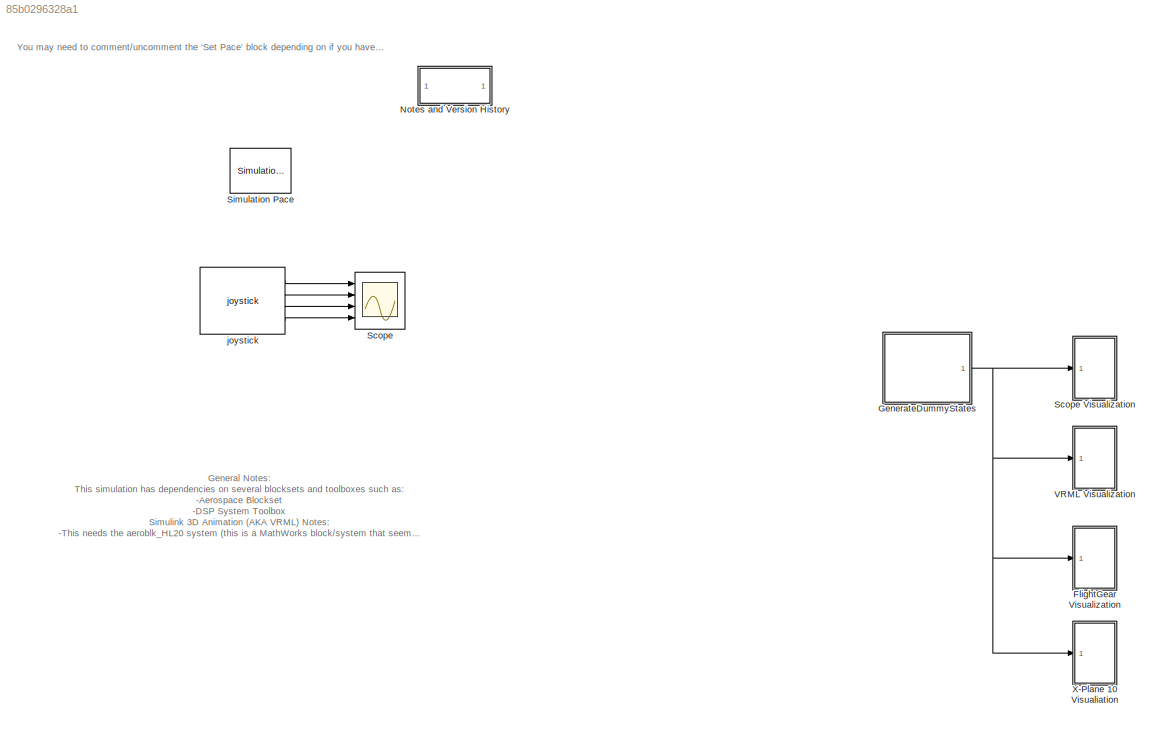
MODEL slx_85b0296328a1
KIND model
CONFIG AbsTol = auto
CONFIG EnableMultiTasking = on
CONFIG FixedStep = auto
CONFIG MaxStep = auto
CONFIG MinStep = auto
CONFIG RelTol = 1e-3
CONFIG SampleTimeConstraint = Unconstrained
CONFIG SolverName = ode45
CONFIG StartTime = 0.0
CONFIG StopTime = simulation.t_final
BLOCK [SubSystem] FlightGear Visualization
  Ports = [1]
  RequestExecContextInheritance = off
BLOCK [Demux] FlightGear Visualization/Demux1
  Outputs = 3
  Ports = [1, 3]
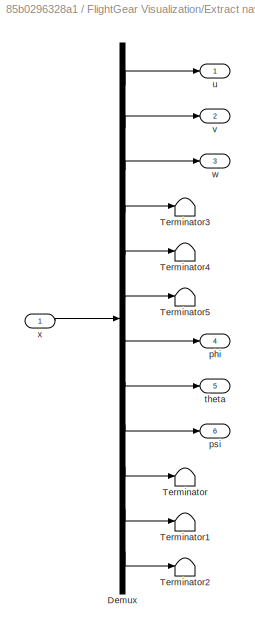
BLOCK [SubSystem] FlightGear Visualization/Extract navigation equation states
  Ports = [1, 6]
  RequestExecContextInheritance = off
BLOCK [Demux] FlightGear Visualization/Extract navigation equation states/Demux
  Outputs = 12
  Ports = [1, 12]
BLOCK [Terminator] FlightGear Visualization/Extract navigation equation states/Terminator
BLOCK [Terminator] FlightGear Visualization/Extract navigation equation states/Terminator1
BLOCK [Terminator] FlightGear Visualization/Extract navigation equation states/Terminator2
BLOCK [Terminator] FlightGear Visualization/Extract navigation equation states/Terminator3
BLOCK [Terminator] FlightGear Visualization/Extract navigation equation states/Terminator4
BLOCK [Terminator] FlightGear Visualization/Extract navigation equation states/Terminator5
BLOCK [Outport] FlightGear Visualization/Extract navigation equation states/phi
  Port = 4
  VectorParamsAs1DForOutWhenUnconnected = off
BLOCK [Outport] FlightGear Visualization/Extract navigation equation states/psi
  Port = 6
  VectorParamsAs1DForOutWhenUnconnected = off
BLOCK [Outport] FlightGear Visualization/Extract navigation equation states/theta
  Port = 5
  VectorParamsAs1DForOutWhenUnconnected = off
BLOCK [Outport] FlightGear Visualization/Extract navigation equation states/u
  VectorParamsAs1DForOutWhenUnconnected = off
BLOCK [Outport] FlightGear Visualization/Extract navigation equation states/v
  Port = 2
  VectorParamsAs1DForOutWhenUnconnected = off
BLOCK [Outport] FlightGear Visualization/Extract navigation equation states/w
  Port = 3
  VectorParamsAs1DForOutWhenUnconnected = off
BLOCK [Inport] FlightGear Visualization/Extract navigation equation states/x
BLOCK [Reference] FlightGear Visualization/FlightGear Preconfigured 6DoF Animation  REF=aerolibfltsims/FlightGear
Preconfigured
6DoF Animation
  AttributesFormatString = Version Selected: %<xFlightGearVersion>
  Ports = [1]
  SourceBlock = aerolibfltsims/FlightGear\nPreconfigured\n6DoF Animation
  SourceProductBaseCode = AE
  SourceType = FlightGearQuick6DoFAnimation
BLOCK [Gain] FlightGear Visualization/Gain1
  Gain = 180/pi
BLOCK [Gain] FlightGear Visualization/Gain2
  Gain = 180/pi
BLOCK [Reference] FlightGear Visualization/Generate Run Script  REF=aerolibfltsims/Generate
Run Script
  Ports = []
  SourceBlock = aerolibfltsims/Generate\nRun Script
  SourceProductBaseCode = AE
  SourceType = Generate FlightGear Run Script
BLOCK [Reference] FlightGear Visualization/Geodetic Position  REF=LumAerospaceBlockset_EquationsOfMotion/Geodetic Position
  Ports = [3, 1]
  SourceBlock = LumAerospaceBlockset_EquationsOfMotion/Geodetic Position
BLOCK [Mux] FlightGear Visualization/Mux3
  DisplayOption = bar
  Inputs = 6
  Ports = [6, 1]
BLOCK [Reference] FlightGear Visualization/Navigation Equations  REF=LumAerospaceBlockset_EquationsOfMotion/Navigation Equations
  Description = Version History  \n                 \n05/24/05: Created
  Ports = [6, 3]
  SourceBlock = LumAerospaceBlockset_EquationsOfMotion/Navigation Equations
BLOCK [Inport] FlightGear Visualization/x
BLOCK [SubSystem] GenerateDummyStates
  Ports = [0, 1]
  RequestExecContextInheritance = off
BLOCK [Clock] GenerateDummyStates/Clock
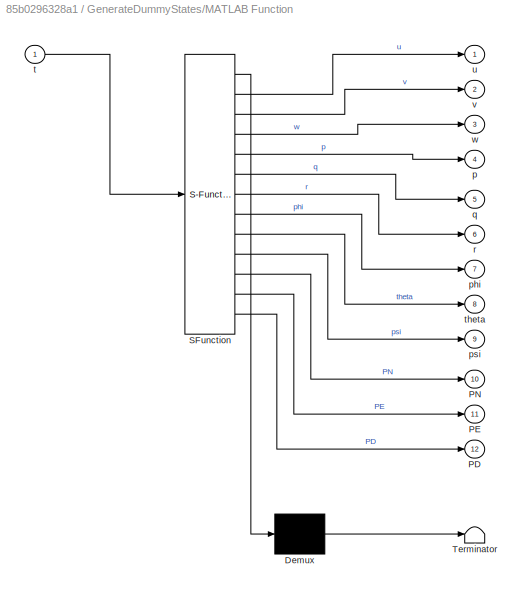
BLOCK [SubSystem] GenerateDummyStates/MATLAB Function
  ErrorFcn = Stateflow.Translate.translate
  PermitHierarchicalResolution = ExplicitOnly
  Ports = [1, 12]
  RequestExecContextInheritance = off
  SFBlockType = MATLAB Function
  TreatAsAtomicUnit = on
BLOCK [Demux] GenerateDummyStates/MATLAB Function/ Demux 
  Outputs = 1
  Ports = [1, 1]
BLOCK [S-Function] GenerateDummyStates/MATLAB Function/ SFunction 
  EnableBusSupport = on
  FunctionName = sf_sfun
  PortCounts = [1 13]
  Ports = [1, 13]
  SFcnIsStateOwnerBlock = off
  SFunctionDeploymentMode = off
  Tag = Stateflow S-Function 2
BLOCK [Terminator] GenerateDummyStates/MATLAB Function/ Terminator 
BLOCK [Outport] GenerateDummyStates/MATLAB Function/PD
  Port = 12
BLOCK [Outport] GenerateDummyStates/MATLAB Function/PE
  Port = 11
BLOCK [Outport] GenerateDummyStates/MATLAB Function/PN
  Port = 10
BLOCK [Outport] GenerateDummyStates/MATLAB Function/p
  Port = 4
BLOCK [Outport] GenerateDummyStates/MATLAB Function/phi
  Port = 7
BLOCK [Outport] GenerateDummyStates/MATLAB Function/psi
  Port = 9
BLOCK [Outport] GenerateDummyStates/MATLAB Function/q
  Port = 5
BLOCK [Outport] GenerateDummyStates/MATLAB Function/r
  Port = 6
BLOCK [Inport] GenerateDummyStates/MATLAB Function/t
BLOCK [Outport] GenerateDummyStates/MATLAB Function/theta
  Port = 8
BLOCK [Outport] GenerateDummyStates/MATLAB Function/u
BLOCK [Outport] GenerateDummyStates/MATLAB Function/v
  Port = 2
BLOCK [Outport] GenerateDummyStates/MATLAB Function/w
  Port = 3
BLOCK [Mux] GenerateDummyStates/Mux
  DisplayOption = bar
  Inputs = 12
  Ports = [12, 1]
BLOCK [Outport] GenerateDummyStates/x
BLOCK [SubSystem] Notes and Version History
  Ports = []
  RequestExecContextInheritance = off
BLOCK [Scope] Scope
  Floating = off
  NumInputPorts = 4
  Ports = [4]
  ScopeSpecificationString = Simulink.scopes.TimeScopeBlockCfg('CurrentConfiguration', extmgr.ConfigurationSet(extmgr.Configuration('Core','General UI',true),extmgr.Configuration('Core','Source UI',true),extmgr.Configuration('Sources','WiredSimulink',true),extmgr.Configuration('Visuals','Time Domain',true,'SerializedDisplays',{struct('MinYLimReal','-10','MaxYLimReal','10','YLabelReal','','MinYLimMag','0','MaxYLimMag','10','Le...<+3509ch>
BLOCK [SubSystem] Scope Visualization
  Ports = [1]
  RequestExecContextInheritance = off
BLOCK [Demux] Scope Visualization/Demux
  Outputs = 12
  Ports = [1, 12]
BLOCK [Scope] Scope Visualization/Scope
  Floating = off
  NumInputPorts = 12
  Ports = [12]
  ScopeSpecificationString = Simulink.scopes.TimeScopeBlockCfg('CurrentConfiguration', extmgr.ConfigurationSet(extmgr.Configuration('Core','General UI',true),extmgr.Configuration('Core','Source UI',true),extmgr.Configuration('Sources','WiredSimulink',true),extmgr.Configuration('Visuals','Time Domain',true,'SerializedDisplays',{struct('MinYLimReal','82.62042','MaxYLimReal','106.32118','YLabelReal','','MinYLimMag','82.62042','M...<+8864ch>
BLOCK [Inport] Scope Visualization/x
BLOCK [Reference] Simulation Pace  REF=aerolibanimutils/Simulation Pace
  AttributesFormatString = %<SleepMode>\n%<SimulationPace> sec/sec
  Commented = on
  Ports = []
  SourceBlock = aerolibanimutils/Simulation Pace
  SourceProductBaseCode = AE
  SourceType = Simulation Pace
BLOCK [SubSystem] VRML Visualization
  Ports = [1]
  RequestExecContextInheritance = off
BLOCK [SubSystem] VRML Visualization/Extract visualization states
  Ports = [1, 6]
  RequestExecContextInheritance = off
BLOCK [Demux] VRML Visualization/Extract visualization states/Demux
  Outputs = 12
  Ports = [1, 12]
BLOCK [Outport] VRML Visualization/Extract visualization states/PD
  Port = 6
  VectorParamsAs1DForOutWhenUnconnected = off
BLOCK [Outport] VRML Visualization/Extract visualization states/PE
  Port = 5
  VectorParamsAs1DForOutWhenUnconnected = off
BLOCK [Outport] VRML Visualization/Extract visualization states/PN
  Port = 4
  VectorParamsAs1DForOutWhenUnconnected = off
BLOCK [Terminator] VRML Visualization/Extract visualization states/Terminator
BLOCK [Terminator] VRML Visualization/Extract visualization states/Terminator1
BLOCK [Terminator] VRML Visualization/Extract visualization states/Terminator2
BLOCK [Terminator] VRML Visualization/Extract visualization states/Terminator3
BLOCK [Terminator] VRML Visualization/Extract visualization states/Terminator4
BLOCK [Terminator] VRML Visualization/Extract visualization states/Terminator5
BLOCK [Outport] VRML Visualization/Extract visualization states/phi
  VectorParamsAs1DForOutWhenUnconnected = off
BLOCK [Outport] VRML Visualization/Extract visualization states/psi
  Port = 3
  VectorParamsAs1DForOutWhenUnconnected = off
BLOCK [Outport] VRML Visualization/Extract visualization states/theta
  Port = 2
  VectorParamsAs1DForOutWhenUnconnected = off
BLOCK [Inport] VRML Visualization/Extract visualization states/x
BLOCK [Reference] VRML Visualization/VRML_visualization  REF=LumAerospaceBlockset_Animation/VRML_visualization
  Ports = [6]
  SourceBlock = LumAerospaceBlockset_Animation/VRML_visualization
BLOCK [Inport] VRML Visualization/x
BLOCK [SubSystem] X-Plane 10 Visualiation
  Ports = [1]
  RequestExecContextInheritance = off
BLOCK [SubSystem] X-Plane 10 Visualiation/Extract navigation equation states
  Ports = [1, 6]
  RequestExecContextInheritance = off
BLOCK [Demux] X-Plane 10 Visualiation/Extract navigation equation states/Demux
  Outputs = 12
  Ports = [1, 12]
BLOCK [Terminator] X-Plane 10 Visualiation/Extract navigation equation states/Terminator
BLOCK [Terminator] X-Plane 10 Visualiation/Extract navigation equation states/Terminator1
BLOCK [Terminator] X-Plane 10 Visualiation/Extract navigation equation states/Terminator2
BLOCK [Terminator] X-Plane 10 Visualiation/Extract navigation equation states/Terminator3
BLOCK [Terminator] X-Plane 10 Visualiation/Extract navigation equation states/Terminator4
BLOCK [Terminator] X-Plane 10 Visualiation/Extract navigation equation states/Terminator5
BLOCK [Outport] X-Plane 10 Visualiation/Extract navigation equation states/phi
  Port = 4
  VectorParamsAs1DForOutWhenUnconnected = off
BLOCK [Outport] X-Plane 10 Visualiation/Extract navigation equation states/psi
  Port = 6
  VectorParamsAs1DForOutWhenUnconnected = off
BLOCK [Outport] X-Plane 10 Visualiation/Extract navigation equation states/theta
  Port = 5
  VectorParamsAs1DForOutWhenUnconnected = off
BLOCK [Outport] X-Plane 10 Visualiation/Extract navigation equation states/u
  VectorParamsAs1DForOutWhenUnconnected = off
BLOCK [Outport] X-Plane 10 Visualiation/Extract navigation equation states/v
  Port = 2
  VectorParamsAs1DForOutWhenUnconnected = off
BLOCK [Outport] X-Plane 10 Visualiation/Extract navigation equation states/w
  Port = 3
  VectorParamsAs1DForOutWhenUnconnected = off
BLOCK [Inport] X-Plane 10 Visualiation/Extract navigation equation states/x
BLOCK [Reference] X-Plane 10 Visualiation/Geodetic Position  REF=LumAerospaceBlockset_EquationsOfMotion/Geodetic Position
  Ports = [3, 1]
  SourceBlock = LumAerospaceBlockset_EquationsOfMotion/Geodetic Position
BLOCK [Mux] X-Plane 10 Visualiation/Mux
  DisplayOption = bar
  Inputs = 3
  Ports = [3, 1]
BLOCK [Reference] X-Plane 10 Visualiation/Navigation Equations  REF=LumAerospaceBlockset_EquationsOfMotion/Navigation Equations
  Description = Version History  \n                 \n05/24/05: Created
  Ports = [6, 3]
  SourceBlock = LumAerospaceBlockset_EquationsOfMotion/Navigation Equations
BLOCK [Reference] X-Plane 10 Visualiation/XPlane_visualization  REF=LumAerospaceBlockset_Animation/XPlane_visualization
  Ports = [2]
  SourceBlock = LumAerospaceBlockset_Animation/XPlane_visualization
BLOCK [Inport] X-Plane 10 Visualiation/x
BLOCK [Reference] joystick  REF=LumAerospaceBlockset_Animation/joystick
  Ports = [0, 4]
  SourceBlock = LumAerospaceBlockset_Animation/joystick
ANNOTATION (root): General Notes: This simulation has dependencies on several blocksets and toolboxes such as: -Aerospace Blockset -DSP System Toolbox Simulink 3D Animation (AKA VRML) Notes: -This needs the aeroblk_HL20 system (this is a MathWorks block/system that seems to have been removed from newer releases. As such, the latest version of Matlab that this was tested with is Matlab R2021a. It is recommended that ...<+383ch>
ANNOTATION (root): You may need to comment/uncomment the 'Set Pace' block depending on if you have the 'FlightGear Preconfigured 6DoF Animation' block in your model or not.
ANNOTATION Notes and Version History: A subset of files that can be released to students to support the final project. Christopher Lum <email> Version History 03/28/20: Updated to Matlab R2018b 04/09/20: Removed blocks to make this a minimal set of files that can be released to students 03/08/22: Added FlightGear visualization 02/15/25: Updated for new dependencies/links. Updated for Matlab R2021a. Added dummy states.
LINE FlightGear Visualization/Demux1:1 -> FlightGear Visualization/Gain1:1
LINE FlightGear Visualization/Demux1:2 -> FlightGear Visualization/Gain2:1
LINE FlightGear Visualization/Demux1:3 -> FlightGear Visualization/Mux3:3
LINE FlightGear Visualization/Extract navigation equation states/Demux:1 -> FlightGear Visualization/Extract navigation equation states/u:1
LINE FlightGear Visualization/Extract navigation equation states/Demux:10 -> FlightGear Visualization/Extract navigation equation states/Terminator:1
LINE FlightGear Visualization/Extract navigation equation states/Demux:11 -> FlightGear Visualization/Extract navigation equation states/Terminator1:1
LINE FlightGear Visualization/Extract navigation equation states/Demux:12 -> FlightGear Visualization/Extract navigation equation states/Terminator2:1
LINE FlightGear Visualization/Extract navigation equation states/Demux:2 -> FlightGear Visualization/Extract navigation equation states/v:1
LINE FlightGear Visualization/Extract navigation equation states/Demux:3 -> FlightGear Visualization/Extract navigation equation states/w:1
LINE FlightGear Visualization/Extract navigation equation states/Demux:4 -> FlightGear Visualization/Extract navigation equation states/Terminator3:1
LINE FlightGear Visualization/Extract navigation equation states/Demux:5 -> FlightGear Visualization/Extract navigation equation states/Terminator4:1
LINE FlightGear Visualization/Extract navigation equation states/Demux:6 -> FlightGear Visualization/Extract navigation equation states/Terminator5:1
LINE FlightGear Visualization/Extract navigation equation states/Demux:7 -> FlightGear Visualization/Extract navigation equation states/phi:1
LINE FlightGear Visualization/Extract navigation equation states/Demux:8 -> FlightGear Visualization/Extract navigation equation states/theta:1
LINE FlightGear Visualization/Extract navigation equation states/Demux:9 -> FlightGear Visualization/Extract navigation equation states/psi:1
LINE FlightGear Visualization/Extract navigation equation states/x:1 -> FlightGear Visualization/Extract navigation equation states/Demux:1
LINE FlightGear Visualization/Extract navigation equation states:1 -> FlightGear Visualization/Navigation Equations:1
LINE FlightGear Visualization/Extract navigation equation states:2 -> FlightGear Visualization/Navigation Equations:2
LINE FlightGear Visualization/Extract navigation equation states:3 -> FlightGear Visualization/Navigation Equations:3
NET FlightGear Visualization/Extract navigation equation states:4 -> FlightGear Visualization/Mux3:4, FlightGear Visualization/Navigation Equations:4
NET FlightGear Visualization/Extract navigation equation states:5 -> FlightGear Visualization/Mux3:5, FlightGear Visualization/Navigation Equations:5
NET FlightGear Visualization/Extract navigation equation states:6 -> FlightGear Visualization/Mux3:6, FlightGear Visualization/Navigation Equations:6
LINE FlightGear Visualization/Gain1:1 -> FlightGear Visualization/Mux3:2
LINE FlightGear Visualization/Gain2:1 -> FlightGear Visualization/Mux3:1
LINE FlightGear Visualization/Geodetic Position:1 -> FlightGear Visualization/Demux1:1
LINE FlightGear Visualization/Mux3:1 -> FlightGear Visualization/FlightGear Preconfigured 6DoF Animation:1
LINE FlightGear Visualization/Navigation Equations:1 -> FlightGear Visualization/Geodetic Position:1
LINE FlightGear Visualization/Navigation Equations:2 -> FlightGear Visualization/Geodetic Position:2
LINE FlightGear Visualization/Navigation Equations:3 -> FlightGear Visualization/Geodetic Position:3
LINE FlightGear Visualization/x:1 -> FlightGear Visualization/Extract navigation equation states:1
LINE GenerateDummyStates/Clock:1 -> GenerateDummyStates/MATLAB Function:1
LINE GenerateDummyStates/MATLAB Function:1 -> GenerateDummyStates/Mux:1
LINE GenerateDummyStates/MATLAB Function:10 -> GenerateDummyStates/Mux:10
LINE GenerateDummyStates/MATLAB Function:11 -> GenerateDummyStates/Mux:11
LINE GenerateDummyStates/MATLAB Function:12 -> GenerateDummyStates/Mux:12
LINE GenerateDummyStates/MATLAB Function:2 -> GenerateDummyStates/Mux:2
LINE GenerateDummyStates/MATLAB Function:3 -> GenerateDummyStates/Mux:3
LINE GenerateDummyStates/MATLAB Function:4 -> GenerateDummyStates/Mux:4
LINE GenerateDummyStates/MATLAB Function:5 -> GenerateDummyStates/Mux:5
LINE GenerateDummyStates/MATLAB Function:6 -> GenerateDummyStates/Mux:6
LINE GenerateDummyStates/MATLAB Function:7 -> GenerateDummyStates/Mux:7
LINE GenerateDummyStates/MATLAB Function:8 -> GenerateDummyStates/Mux:8
LINE GenerateDummyStates/MATLAB Function:9 -> GenerateDummyStates/Mux:9
LINE GenerateDummyStates/Mux:1 -> GenerateDummyStates/x:1
NET GenerateDummyStates:1 -> FlightGear Visualization:1, Scope Visualization:1, VRML Visualization:1, X-Plane 10 Visualiation:1
LINE Scope Visualization/Demux:1 -> Scope Visualization/Scope:1
LINE Scope Visualization/Demux:10 -> Scope Visualization/Scope:10
LINE Scope Visualization/Demux:11 -> Scope Visualization/Scope:11
LINE Scope Visualization/Demux:12 -> Scope Visualization/Scope:12
LINE Scope Visualization/Demux:2 -> Scope Visualization/Scope:2
LINE Scope Visualization/Demux:3 -> Scope Visualization/Scope:3
LINE Scope Visualization/Demux:4 -> Scope Visualization/Scope:4
LINE Scope Visualization/Demux:5 -> Scope Visualization/Scope:5
LINE Scope Visualization/Demux:6 -> Scope Visualization/Scope:6
LINE Scope Visualization/Demux:7 -> Scope Visualization/Scope:7
LINE Scope Visualization/Demux:8 -> Scope Visualization/Scope:8
LINE Scope Visualization/Demux:9 -> Scope Visualization/Scope:9
LINE Scope Visualization/x:1 -> Scope Visualization/Demux:1
LINE VRML Visualization/Extract visualization states/Demux:1 -> VRML Visualization/Extract visualization states/Terminator:1
LINE VRML Visualization/Extract visualization states/Demux:10 -> VRML Visualization/Extract visualization states/PN:1
LINE VRML Visualization/Extract visualization states/Demux:11 -> VRML Visualization/Extract visualization states/PE:1
LINE VRML Visualization/Extract visualization states/Demux:12 -> VRML Visualization/Extract visualization states/PD:1
LINE VRML Visualization/Extract visualization states/Demux:2 -> VRML Visualization/Extract visualization states/Terminator1:1
LINE VRML Visualization/Extract visualization states/Demux:3 -> VRML Visualization/Extract visualization states/Terminator2:1
LINE VRML Visualization/Extract visualization states/Demux:4 -> VRML Visualization/Extract visualization states/Terminator3:1
LINE VRML Visualization/Extract visualization states/Demux:5 -> VRML Visualization/Extract visualization states/Terminator4:1
LINE VRML Visualization/Extract visualization states/Demux:6 -> VRML Visualization/Extract visualization states/Terminator5:1
LINE VRML Visualization/Extract visualization states/Demux:7 -> VRML Visualization/Extract visualization states/phi:1
LINE VRML Visualization/Extract visualization states/Demux:8 -> VRML Visualization/Extract visualization states/theta:1
LINE VRML Visualization/Extract visualization states/Demux:9 -> VRML Visualization/Extract visualization states/psi:1
LINE VRML Visualization/Extract visualization states/x:1 -> VRML Visualization/Extract visualization states/Demux:1
LINE VRML Visualization/Extract visualization states:1 -> VRML Visualization/VRML_visualization:1
LINE VRML Visualization/Extract visualization states:2 -> VRML Visualization/VRML_visualization:2
LINE VRML Visualization/Extract visualization states:3 -> VRML Visualization/VRML_visualization:3
LINE VRML Visualization/Extract visualization states:4 -> VRML Visualization/VRML_visualization:4
LINE VRML Visualization/Extract visualization states:5 -> VRML Visualization/VRML_visualization:5
LINE VRML Visualization/Extract visualization states:6 -> VRML Visualization/VRML_visualization:6
LINE VRML Visualization/x:1 -> VRML Visualization/Extract visualization states:1
LINE X-Plane 10 Visualiation/Extract navigation equation states/Demux:1 -> X-Plane 10 Visualiation/Extract navigation equation states/u:1
LINE X-Plane 10 Visualiation/Extract navigation equation states/Demux:10 -> X-Plane 10 Visualiation/Extract navigation equation states/Terminator:1
LINE X-Plane 10 Visualiation/Extract navigation equation states/Demux:11 -> X-Plane 10 Visualiation/Extract navigation equation states/Terminator1:1
LINE X-Plane 10 Visualiation/Extract navigation equation states/Demux:12 -> X-Plane 10 Visualiation/Extract navigation equation states/Terminator2:1
LINE X-Plane 10 Visualiation/Extract navigation equation states/Demux:2 -> X-Plane 10 Visualiation/Extract navigation equation states/v:1
LINE X-Plane 10 Visualiation/Extract navigation equation states/Demux:3 -> X-Plane 10 Visualiation/Extract navigation equation states/w:1
LINE X-Plane 10 Visualiation/Extract navigation equation states/Demux:4 -> X-Plane 10 Visualiation/Extract navigation equation states/Terminator3:1
LINE X-Plane 10 Visualiation/Extract navigation equation states/Demux:5 -> X-Plane 10 Visualiation/Extract navigation equation states/Terminator4:1
LINE X-Plane 10 Visualiation/Extract navigation equation states/Demux:6 -> X-Plane 10 Visualiation/Extract navigation equation states/Terminator5:1
LINE X-Plane 10 Visualiation/Extract navigation equation states/Demux:7 -> X-Plane 10 Visualiation/Extract navigation equation states/phi:1
LINE X-Plane 10 Visualiation/Extract navigation equation states/Demux:8 -> X-Plane 10 Visualiation/Extract navigation equation states/theta:1
LINE X-Plane 10 Visualiation/Extract navigation equation states/Demux:9 -> X-Plane 10 Visualiation/Extract navigation equation states/psi:1
LINE X-Plane 10 Visualiation/Extract navigation equation states/x:1 -> X-Plane 10 Visualiation/Extract navigation equation states/Demux:1
LINE X-Plane 10 Visualiation/Extract navigation equation states:1 -> X-Plane 10 Visualiation/Navigation Equations:1
LINE X-Plane 10 Visualiation/Extract navigation equation states:2 -> X-Plane 10 Visualiation/Navigation Equations:2
LINE X-Plane 10 Visualiation/Extract navigation equation states:3 -> X-Plane 10 Visualiation/Navigation Equations:3
NET X-Plane 10 Visualiation/Extract navigation equation states:4 -> X-Plane 10 Visualiation/Mux:1, X-Plane 10 Visualiation/Navigation Equations:4
NET X-Plane 10 Visualiation/Extract navigation equation states:5 -> X-Plane 10 Visualiation/Mux:2, X-Plane 10 Visualiation/Navigation Equations:5
NET X-Plane 10 Visualiation/Extract navigation equation states:6 -> X-Plane 10 Visualiation/Mux:3, X-Plane 10 Visualiation/Navigation Equations:6
LINE X-Plane 10 Visualiation/Geodetic Position:1 -> X-Plane 10 Visualiation/XPlane_visualization:2
LINE X-Plane 10 Visualiation/Mux:1 -> X-Plane 10 Visualiation/XPlane_visualization:1
LINE X-Plane 10 Visualiation/Navigation Equations:1 -> X-Plane 10 Visualiation/Geodetic Position:1
LINE X-Plane 10 Visualiation/Navigation Equations:2 -> X-Plane 10 Visualiation/Geodetic Position:2
LINE X-Plane 10 Visualiation/Navigation Equations:3 -> X-Plane 10 Visualiation/Geodetic Position:3
LINE X-Plane 10 Visualiation/x:1 -> X-Plane 10 Visualiation/Extract navigation equation states:1
LINE joystick:1 -> Scope:1
LINE joystick:2 -> Scope:2
LINE joystick:3 -> Scope:3
LINE joystick:4 -> Scope:4
note: NET lines group one-source signal fan-out (src -> all destinations, sorted); 1:1 wires keep LINE
CHART GenerateDummyStates/MATLAB Function states=1 transitions=1
  STATE_LABEL 'eML_blk_kernel()'
  STATE_LABEL 'SCRIPT:\nfunction [u,v,w,p,q,r,phi,theta,psi,PN,PE,PD] = fcn(t)\n\nu       = 65;\nv       = 0;\nw       = 0;\np       = 0;\nq       = 0;\nr       = 0;\nphi     = deg2rad(30)*sin(2*pi*t/60);\ntheta   = 0;\npsi     = deg2rad(15)*sin(2*pi*t/60);\nPN      = 300*t;\nPE      = 0;\nPD      = -200;'
CHART  states=0 transitions=0
